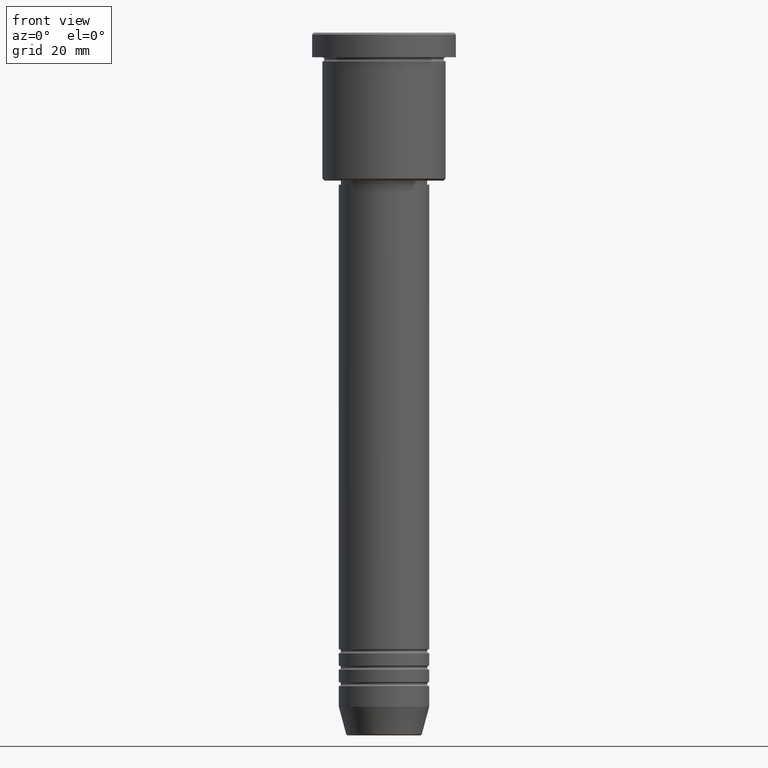
[diagram: clean part render]
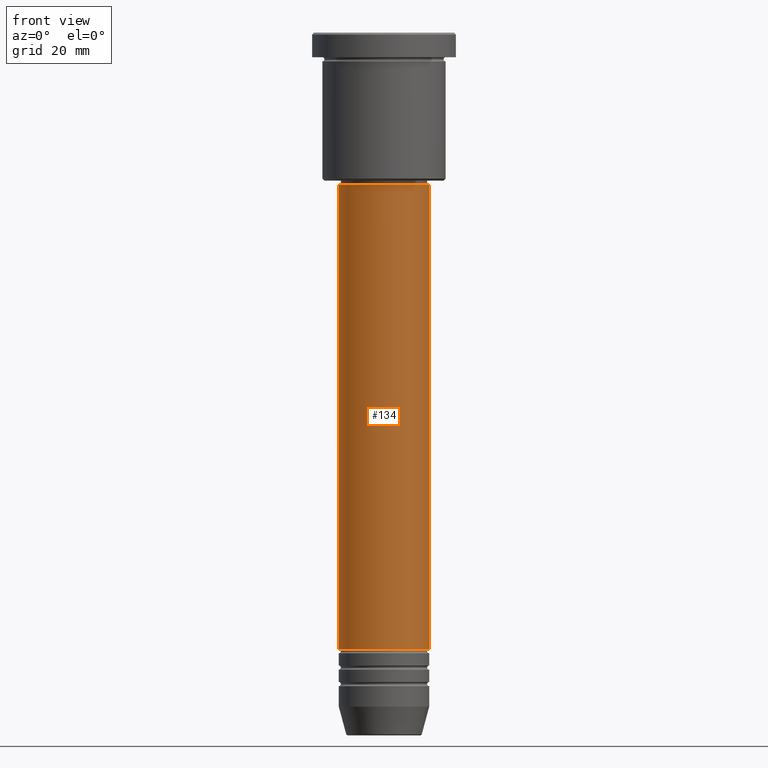
[diagram: same view with one face highlighted and labeled with its STEP entity id]
A machine part, front view. The second image highlights one B-rep face of the part: STEP entity #134.
In plain terms, the highlighted cylindrical surface (partial cylindrical patch) has radius 11 mm, axis along (-0, -0, 1).
Its self-contained STEP definition (entity closure, byte-faithful):
#2 = ORIENTED_EDGE ( 'NONE', *, *, #559, .F. ) ;
#51 = CARTESIAN_POINT ( 'NONE',  ( 11.00000000000000000, 0.000000000000000000, 0.000000000000000000 ) ) ;
#62 = CIRCLE ( 'NONE', #365, 11.00000000000000000 ) ;
#64 = CARTESIAN_POINT ( 'NONE',  ( 0.000000000000000000, 0.000000000000000000, -149.9999999999999147 ) ) ;
#72 = CARTESIAN_POINT ( 'NONE',  ( 0.000000000000000000, 0.000000000000000000, -37.00000000000002842 ) ) ;
#134 = ADVANCED_FACE ( 'NONE', ( #547 ), #776, .T. ) ;
#143 = LINE ( 'NONE', #51, #533 ) ;
#179 = DIRECTION ( 'NONE',  ( -0.000000000000000000, -0.000000000000000000, 1.000000000000000000 ) ) ;
#186 = CARTESIAN_POINT ( 'NONE',  ( 11.00000000000000000, 0.000000000000000000, -37.00000000000002842 ) ) ;
#187 = CARTESIAN_POINT ( 'NONE',  ( 11.00000000000000000, 0.000000000000000000, -149.9999999999999147 ) ) ;
#240 = DIRECTION ( 'NONE',  ( -0.000000000000000000, -0.000000000000000000, 1.000000000000000000 ) ) ;
#251 = VERTEX_POINT ( 'NONE', #829 ) ;
#271 = DIRECTION ( 'NONE',  ( -0.000000000000000000, -0.000000000000000000, 1.000000000000000000 ) ) ;
#291 = AXIS2_PLACEMENT_3D ( 'NONE', #884, #330, #684 ) ;
#311 = CIRCLE ( 'NONE', #970, 11.00000000000000000 ) ;
#330 = DIRECTION ( 'NONE',  ( -0.000000000000000000, -0.000000000000000000, 1.000000000000000000 ) ) ;
#350 = EDGE_CURVE ( 'NONE', #857, #673, #311, .T. ) ;
#360 = ORIENTED_EDGE ( 'NONE', *, *, #350, .T. ) ;
#365 = AXIS2_PLACEMENT_3D ( 'NONE', #72, #179, #699 ) ;
#434 = EDGE_CURVE ( 'NONE', #673, #1071, #143, .T. ) ;
#533 = VECTOR ( 'NONE', #240, 1000.000000000000000 ) ;
#547 = FACE_OUTER_BOUND ( 'NONE', #865, .T. ) ;
#559 = EDGE_CURVE ( 'NONE', #251, #1071, #62, .T. ) ;
#578 = EDGE_CURVE ( 'NONE', #857, #251, #981, .T. ) ;
#642 = ORIENTED_EDGE ( 'NONE', *, *, #434, .T. ) ;
#673 = VERTEX_POINT ( 'NONE', #187 ) ;
#684 = DIRECTION ( 'NONE',  ( 1.000000000000000000, 0.000000000000000000, 0.000000000000000000 ) ) ;
#686 = CARTESIAN_POINT ( 'NONE',  ( -11.00000000000000000, 1.347111479062088405E-15, -149.9999999999999147 ) ) ;
#694 = DIRECTION ( 'NONE',  ( 1.000000000000000000, 0.000000000000000000, 0.000000000000000000 ) ) ;
#699 = DIRECTION ( 'NONE',  ( 1.000000000000000000, 0.000000000000000000, 0.000000000000000000 ) ) ;
#776 = CYLINDRICAL_SURFACE ( 'NONE', #291, 11.00000000000000000 ) ;
#790 = DIRECTION ( 'NONE',  ( -0.000000000000000000, -0.000000000000000000, 1.000000000000000000 ) ) ;
#829 = CARTESIAN_POINT ( 'NONE',  ( -11.00000000000000000, 1.347111479062088405E-15, -37.00000000000002842 ) ) ;
#857 = VERTEX_POINT ( 'NONE', #686 ) ;
#865 = EDGE_LOOP ( 'NONE', ( #983, #360, #642, #2 ) ) ;
#884 = CARTESIAN_POINT ( 'NONE',  ( 0.000000000000000000, 0.000000000000000000, 0.000000000000000000 ) ) ;
#918 = VECTOR ( 'NONE', #271, 1000.000000000000000 ) ;
#970 = AXIS2_PLACEMENT_3D ( 'NONE', #64, #790, #694 ) ;
#981 = LINE ( 'NONE', #1085, #918 ) ;
#983 = ORIENTED_EDGE ( 'NONE', *, *, #578, .F. ) ;
#1071 = VERTEX_POINT ( 'NONE', #186 ) ;
#1085 = CARTESIAN_POINT ( 'NONE',  ( -11.00000000000000000, 1.347111479062088405E-15, 0.000000000000000000 ) ) ;